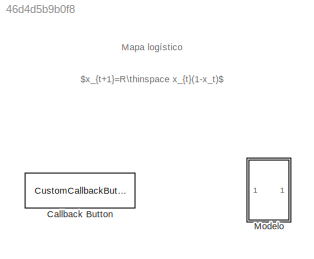
MODEL slx_46d4d5b9b0f8
KIND model
CONFIG AbsTol = auto
CONFIG EnableMultiTasking = off
CONFIG FixedStep = auto
CONFIG MaxStep = auto
CONFIG MinStep = auto
CONFIG RelTol = 1e-3
CONFIG SampleTimeConstraint = Unconstrained
CONFIG SolverName = VariableStepAuto
CONFIG StartTime = 0.0
CONFIG StopTime = 10.0
BLOCK [CustomCallbackButton] Callback Button
  Configuration = {"components":[{"name":"BackgroundImageComponent","settings":{"image":{"size":[0,0],"src":"default","srcOrientation":"Right"},"position":[0,0,1,1]}},{"name":"ButtonStateComponent","settings":{"buttonType":"momentary","clickFcn":"close all\n\nx = out.xt;\nt = 0:length(x)-1;\n\nplot(t,x,'b','LineWidth',3)\ngrid on\nxlim([0,length(x)-1])\nylim([0,1])\nxlabel('$t$','Interpreter','latex','FontSize',14)...<+2711ch>
  CustomBackgroundColor = {"color":[0.9568627451,0.9568627451,0.9568627451],"show":true}
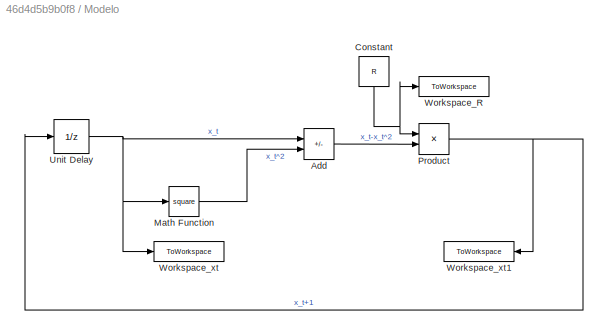
BLOCK [SubSystem] Modelo
BLOCK [Sum] Modelo/Add
  IconShape = rectangular
  Inputs = +-
BLOCK [Constant] Modelo/Constant
  NameLocation = left
  Value = R
BLOCK [Math] Modelo/Math Function
  Operator = square
BLOCK [Product] Modelo/Product
BLOCK [UnitDelay] Modelo/Unit Delay
  HasFrameUpgradeWarning = on
  InitialCondition = 0.8
  SampleTime = -1
BLOCK [ToWorkspace] Modelo/Workspace_R
  FixptAsFi = on
  MaxDataPoints = inf
  SampleTime = -1
  VariableName = R
BLOCK [ToWorkspace] Modelo/Workspace_xt
  FixptAsFi = on
  MaxDataPoints = inf
  SampleTime = -1
  VariableName = xt
BLOCK [ToWorkspace] Modelo/Workspace_xt1
  FixptAsFi = on
  MaxDataPoints = inf
  NameLocation = top
  SampleTime = -1
  VariableName = xt1
ANNOTATION (root): Mapa logístico
ANNOTATION (root): $x_{t+1}=R\thinspace x_{t}(1-x_t)$
LINE Modelo/Add:1 -> Modelo/Product:2
NET Modelo/Constant:1 -> Modelo/Product:1, Modelo/Workspace_R:1
LINE Modelo/Math Function:1 -> Modelo/Add:2
NET Modelo/Product:1 -> Modelo/Unit Delay:1, Modelo/Workspace_xt1:1
NET Modelo/Unit Delay:1 -> Modelo/Add:1, Modelo/Math Function:1, Modelo/Workspace_xt:1
note: NET lines group one-source signal fan-out (src -> all destinations, sorted); 1:1 wires keep LINE
